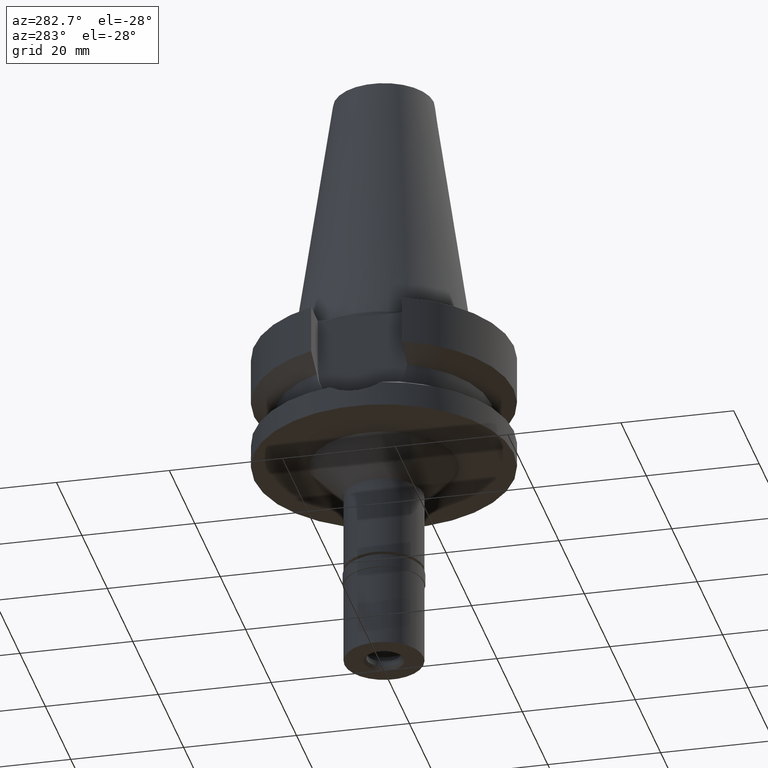
[diagram: clean part render]
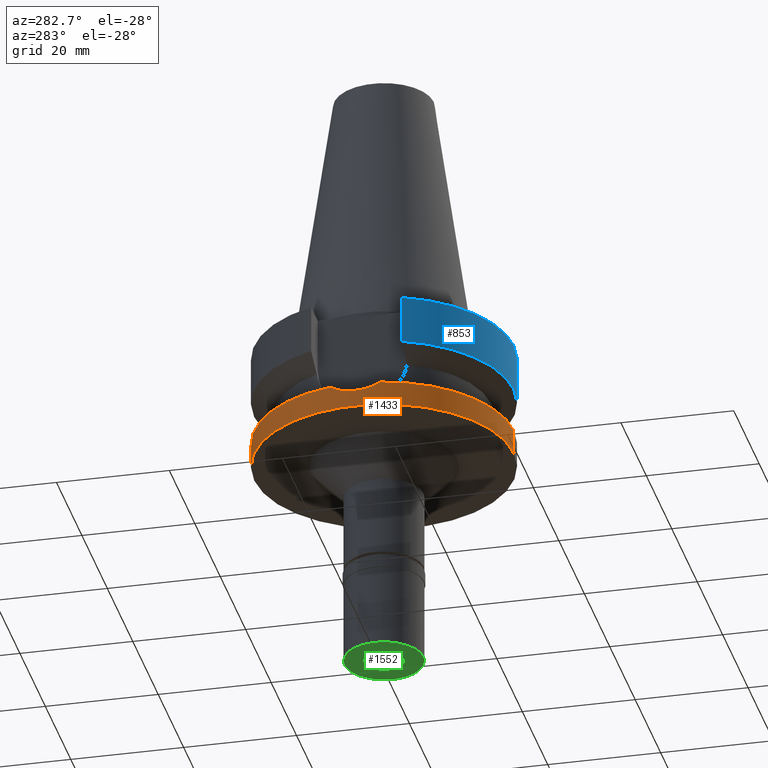
[diagram: same view with three faces highlighted in distinct colors, each labeled with its STEP entity id]
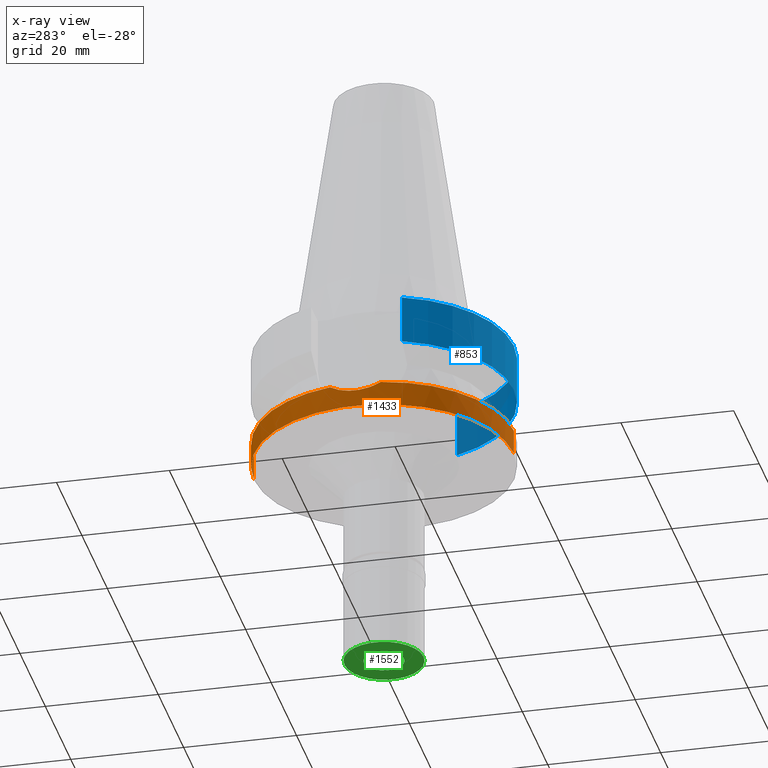
[diagram: x-ray of the same camera — body ghosted, the three highlighted faces saturated]
A machine part, auxiliary view with three faces highlighted in distinct colors.
The next image is the same camera in x-ray (body ghosted, the three faces saturated) — at least one of them is partly hidden behind the body in this view.
Their STEP definitions:

[orange] entity #1433 — the highlighted cylindrical surface (partial cylindrical patch) has radius 23.0018 mm, axis along (0, 0, -1).
#3 = CIRCLE ( 'NONE', #2534, 23.00179173279000011 ) ;
#10 = CARTESIAN_POINT ( 'NONE',  ( -22.88402643636988643, -2.325754021695328966, -18.65674074075245770 ) ) ;
#35 = CARTESIAN_POINT ( 'NONE',  ( -22.96114436732786146, -1.378457862027962388, -18.88353429848299214 ) ) ;
#108 = EDGE_CURVE ( 'NONE', #152, #382, #311, .T. ) ;
#141 = ORIENTED_EDGE ( 'NONE', *, *, #2181, .F. ) ;
#152 = VERTEX_POINT ( 'NONE', #2197 ) ;
#185 = CARTESIAN_POINT ( 'NONE',  ( 0.0000000000000000000, 23.00179173279000011, -17.63279163029000074 ) ) ;
#213 = CARTESIAN_POINT ( 'NONE',  ( -22.89849815869771987, -2.179392640264593339, -18.69965624314833263 ) ) ;
#235 = CARTESIAN_POINT ( 'NONE',  ( -22.95396285075072029, 1.531416406263037100, -18.86284724088618248 ) ) ;
#254 = AXIS2_PLACEMENT_3D ( 'NONE', #1543, #2888, #2466 ) ;
#309 = ORIENTED_EDGE ( 'NONE', *, *, #108, .T. ) ;
#311 = CIRCLE ( 'NONE', #1301, 23.00179173279000366 ) ;
#355 = ORIENTED_EDGE ( 'NONE', *, *, #2873, .T. ) ;
#367 = CARTESIAN_POINT ( 'NONE',  ( 0.0000000000000000000, 1.881302412850000052E-14, -22.00000000000000000 ) ) ;
#378 = CARTESIAN_POINT ( 'NONE',  ( 0.0000000000000000000, 1.022848384030000006E-14, -17.63279163029000074 ) ) ;
#382 = VERTEX_POINT ( 'NONE', #2573 ) ;
#394 = DIRECTION ( 'NONE',  ( -0.9807796963072338281, 0.1951183930630069618, 0.0000000000000000000 ) ) ;
#425 = CARTESIAN_POINT ( 'NONE',  ( -22.94868690431086122, -1.573057305262965055, -18.84731829897561539 ) ) ;
#443 = CARTESIAN_POINT ( 'NONE',  ( -22.89141392999098557, -2.251876405495350397, -18.67866006598378092 ) ) ;
#460 = CARTESIAN_POINT ( 'NONE',  ( -23.00137289315239641, -0.4076242066965087285, -18.99876958677882755 ) ) ;
#486 = CARTESIAN_POINT ( 'NONE',  ( -22.70532447095174788, -3.756029773028041419, -18.12442173740278406 ) ) ;
#537 = VECTOR ( 'NONE', #1268, 1000.000000000000000 ) ;
#586 = CYLINDRICAL_SURFACE ( 'NONE', #633, 23.00179173279000011 ) ;
#633 = AXIS2_PLACEMENT_3D ( 'NONE', #1904, #1922, #1313 ) ;
#660 = CARTESIAN_POINT ( 'NONE',  ( -22.87656963739355831, 2.398009204690335405, -18.63456619442488460 ) ) ;
#668 = CARTESIAN_POINT ( 'NONE',  ( -22.86974498650314658, 2.462640222853216709, -18.61429980678051521 ) ) ;
#673 = CARTESIAN_POINT ( 'NONE',  ( 0.0000000000000000000, 23.00179173279000011, -22.00000000000000000 ) ) ;
#680 = CARTESIAN_POINT ( 'NONE',  ( -22.85301127379106845, 2.614619028431492964, -18.56452842529814262 ) ) ;
#898 = CARTESIAN_POINT ( 'NONE',  ( -22.80396809543739778, 3.013367451515033490, -18.41713961940294197 ) ) ;
#958 = B_SPLINE_CURVE_WITH_KNOTS ( 'NONE', 3,
 ( #2062, #2256, #1108, #2724, #898, #1324, #680, #668, #660, #2246, #1365, #2468, #235, #1602, #2494, #460, #2457, #35, #425, #1341, #2711, #213, #443, #2025, #10, #1818, #486, #2012 ),
 .UNSPECIFIED., .F., .F.,
 ( 4, 2, 2, 1, 1, 2, 2, 2, 2, 2, 2, 1, 1, 2, 2, 4 ),
 ( 0.0000000000000000000, 0.1250000000000028311, 0.1875000000000044686, 0.2187500000000052458, 0.2343750000000055234, 0.2421875000000056899, 0.2500000000000058287, 0.3750000000000051070, 0.5000000000000043299, 0.6250000000000034417, 0.6875000000000031086, 0.7187500000000031086, 0.7343750000000028866, 0.7421875000000027756, 0.7500000000000027756, 1.000000000000000000 ),
 .UNSPECIFIED. ) ;
#976 = EDGE_CURVE ( 'NONE', #988, #1945, #3, .T. ) ;
#988 = VERTEX_POINT ( 'NONE', #673 ) ;
#1038 = FACE_OUTER_BOUND ( 'NONE', #1283, .T. ) ;
#1042 = VERTEX_POINT ( 'NONE', #2706 ) ;
#1108 = CARTESIAN_POINT ( 'NONE',  ( -22.69786555316973420, 3.742247097983885773, -18.08863856139490522 ) ) ;
#1246 = DIRECTION ( 'NONE',  ( 0.0000000000000000000, 0.0000000000000000000, -1.000000000000000000 ) ) ;
#1268 = DIRECTION ( 'NONE',  ( 0.0000000000000000000, -2.440492903962000069E-14, -1.000000000000000000 ) ) ;
#1283 = EDGE_LOOP ( 'NONE', ( #309, #2642, #2243, #2855, #355, #141 ) ) ;
#1287 = CARTESIAN_POINT ( 'NONE',  ( 0.0000000000000000000, -23.00179173279000011, -17.63279163029000074 ) ) ;
#1301 = AXIS2_PLACEMENT_3D ( 'NONE', #378, #1246, #394 ) ;
#1313 = DIRECTION ( 'NONE',  ( 0.0000000000000000000, -1.000000000000000000, 0.0000000000000000000 ) ) ;
#1324 = CARTESIAN_POINT ( 'NONE',  ( -22.83728033037878902, 2.746791842467859457, -18.51747308865574126 ) ) ;
#1341 = CARTESIAN_POINT ( 'NONE',  ( -22.92632424490862775, -1.864438774914492170, -18.78174817360973492 ) ) ;
#1365 = CARTESIAN_POINT ( 'NONE',  ( -22.88310326431275854, 2.334973900067765396, -18.65396240018893081 ) ) ;
#1433 = ADVANCED_FACE ( 'NONE', ( #1038 ), #586, .T. ) ;
#1543 = CARTESIAN_POINT ( 'NONE',  ( 0.0000000000000000000, 1.022848384030000006E-14, -17.63279163029000074 ) ) ;
#1602 = CARTESIAN_POINT ( 'NONE',  ( -22.99270542384788740, 0.7497304644855727895, -18.97473002023083666 ) ) ;
#1720 = DIRECTION ( 'NONE',  ( 0.0000000000000000000, 2.359143140496999862E-14, -1.000000000000000000 ) ) ;
#1818 = CARTESIAN_POINT ( 'NONE',  ( -22.81271620766460018, -3.020658728047468156, -18.44495605090872203 ) ) ;
#1880 = CARTESIAN_POINT ( 'NONE',  ( 0.0000000000000000000, -23.00179173279000011, -17.63279163029000074 ) ) ;
#1904 = CARTESIAN_POINT ( 'NONE',  ( 0.0000000000000000000, 1.881302412850000052E-14, 53.62000000000000455 ) ) ;
#1922 = DIRECTION ( 'NONE',  ( 0.0000000000000000000, 0.0000000000000000000, -1.000000000000000000 ) ) ;
#1945 = VERTEX_POINT ( 'NONE', #2302 ) ;
#1957 = CIRCLE ( 'NONE', #254, 23.00179173279000011 ) ;
#1958 = DIRECTION ( 'NONE',  ( 0.0000000000000000000, 0.0000000000000000000, 1.000000000000000000 ) ) ;
#2012 = CARTESIAN_POINT ( 'NONE',  ( -22.55969031021000148, -4.488072640469000341, -17.63279163029000074 ) ) ;
#2025 = CARTESIAN_POINT ( 'NONE',  ( -22.88661451783490008, -2.300171273106836445, -18.66442453301172577 ) ) ;
#2045 = VECTOR ( 'NONE', #1720, 1000.000000000000000 ) ;
#2062 = CARTESIAN_POINT ( 'NONE',  ( -22.55969031021000148, 4.488072640469000341, -17.63279163029000074 ) ) ;
#2070 = EDGE_CURVE ( 'NONE', #382, #988, #2644, .T. ) ;
#2181 = EDGE_CURVE ( 'NONE', #152, #1042, #958, .T. ) ;
#2197 = CARTESIAN_POINT ( 'NONE',  ( -22.55969031021000148, 4.488072640469000341, -17.63279163029000074 ) ) ;
#2243 = ORIENTED_EDGE ( 'NONE', *, *, #976, .T. ) ;
#2246 = CARTESIAN_POINT ( 'NONE',  ( -22.88104230681562612, 2.355036454355307285, -18.64784444120137863 ) ) ;
#2256 = CARTESIAN_POINT ( 'NONE',  ( -22.63371219333480511, 4.115995160150487386, -17.88267384298432816 ) ) ;
#2302 = CARTESIAN_POINT ( 'NONE',  ( 0.0000000000000000000, -23.00179173279000011, -22.00000000000000000 ) ) ;
#2457 = CARTESIAN_POINT ( 'NONE',  ( -22.99116382662537106, -0.7953677957809910382, -18.97024564709867889 ) ) ;
#2466 = DIRECTION ( 'NONE',  ( 0.0000000000000000000, -1.000000000000000000, 0.0000000000000000000 ) ) ;
#2468 = CARTESIAN_POINT ( 'NONE',  ( -22.92470154566406038, 1.923074849751592375, -18.77739204128479500 ) ) ;
#2484 = VERTEX_POINT ( 'NONE', #1880 ) ;
#2494 = CARTESIAN_POINT ( 'NONE',  ( -23.00218321353049333, 0.3574847674060553926, -19.00115233963521533 ) ) ;
#2534 = AXIS2_PLACEMENT_3D ( 'NONE', #367, #1958, #2603 ) ;
#2573 = CARTESIAN_POINT ( 'NONE',  ( 0.0000000000000000000, 23.00179173279000011, -17.63279163029000074 ) ) ;
#2603 = DIRECTION ( 'NONE',  ( 0.0000000000000000000, 1.000000000000000000, 0.0000000000000000000 ) ) ;
#2642 = ORIENTED_EDGE ( 'NONE', *, *, #2070, .T. ) ;
#2644 = LINE ( 'NONE', #185, #537 ) ;
#2655 = EDGE_CURVE ( 'NONE', #2484, #1945, #2872, .T. ) ;
#2706 = CARTESIAN_POINT ( 'NONE',  ( -22.55969031021000148, -4.488072640469000341, -17.63279163029000074 ) ) ;
#2711 = CARTESIAN_POINT ( 'NONE',  ( -22.91422379898832418, -2.009999252541759152, -18.74615257596152063 ) ) ;
#2724 = CARTESIAN_POINT ( 'NONE',  ( -22.77929280798732847, 3.194069245020894954, -18.34195103617187783 ) ) ;
#2855 = ORIENTED_EDGE ( 'NONE', *, *, #2655, .F. ) ;
#2872 = LINE ( 'NONE', #1287, #2045 ) ;
#2873 = EDGE_CURVE ( 'NONE', #2484, #1042, #1957, .T. ) ;
#2888 = DIRECTION ( 'NONE',  ( 0.0000000000000000000, 0.0000000000000000000, -1.000000000000000000 ) ) ;

[blue] entity #853 — the highlighted cylindrical surface (partial cylindrical patch) has radius 23.0018 mm, axis along (0, 0, -1).
#208 = CIRCLE ( 'NONE', #2082, 23.00179173279000011 ) ;
#227 = ORIENTED_EDGE ( 'NONE', *, *, #2326, .T. ) ;
#514 = DIRECTION ( 'NONE',  ( 0.0000000000000000000, 0.0000000000000000000, 1.000000000000000000 ) ) ;
#527 = CARTESIAN_POINT ( 'NONE',  ( 21.54715579650000024, -8.050000000000000711, -1.000000000000000000 ) ) ;
#555 = FACE_OUTER_BOUND ( 'NONE', #627, .T. ) ;
#557 = DIRECTION ( 'NONE',  ( 0.0000000000000000000, -1.000000000000000000, 0.0000000000000000000 ) ) ;
#581 = CARTESIAN_POINT ( 'NONE',  ( -21.54715579650000024, -8.050000000000000711, -1.000000000000000000 ) ) ;
#627 = EDGE_LOOP ( 'NONE', ( #646, #227, #1264, #1412 ) ) ;
#646 = ORIENTED_EDGE ( 'NONE', *, *, #2735, .F. ) ;
#778 = CARTESIAN_POINT ( 'NONE',  ( 0.0000000000000000000, 1.093341284896999988E-14, -9.567208369710998639 ) ) ;
#780 = CARTESIAN_POINT ( 'NONE',  ( 21.54715579650000024, -8.050000000000000711, -9.567208369710998639 ) ) ;
#853 = ADVANCED_FACE ( 'NONE', ( #555 ), #1444, .T. ) ;
#989 = EDGE_CURVE ( 'NONE', #2257, #1604, #2214, .T. ) ;
#1204 = DIRECTION ( 'NONE',  ( 0.0000000000000000000, 0.0000000000000000000, -1.000000000000000000 ) ) ;
#1264 = ORIENTED_EDGE ( 'NONE', *, *, #989, .F. ) ;
#1361 = CARTESIAN_POINT ( 'NONE',  ( 21.54715579650000024, -8.050000000000000711, -1.000000000000000000 ) ) ;
#1412 = ORIENTED_EDGE ( 'NONE', *, *, #1729, .T. ) ;
#1444 = CYLINDRICAL_SURFACE ( 'NONE', #2446, 23.00179173279000011 ) ;
#1604 = VERTEX_POINT ( 'NONE', #780 ) ;
#1717 = CIRCLE ( 'NONE', #2898, 23.00179173279000011 ) ;
#1729 = EDGE_CURVE ( 'NONE', #2257, #2772, #208, .T. ) ;
#1824 = CARTESIAN_POINT ( 'NONE',  ( -21.54715595432999820, -8.049999577544001639, -9.567211145671999262 ) ) ;
#1829 = DIRECTION ( 'NONE',  ( 0.0000000000000000000, 0.0000000000000000000, -1.000000000000000000 ) ) ;
#1871 = VERTEX_POINT ( 'NONE', #1824 ) ;
#1920 = LINE ( 'NONE', #2124, #2090 ) ;
#2060 = CARTESIAN_POINT ( 'NONE',  ( 0.0000000000000000000, 1.881302412850000052E-14, 53.62000000000000455 ) ) ;
#2073 = CARTESIAN_POINT ( 'NONE',  ( 0.0000000000000000000, 1.881302412850000052E-14, -0.9999999999999000799 ) ) ;
#2082 = AXIS2_PLACEMENT_3D ( 'NONE', #2073, #1204, #2109 ) ;
#2090 = VECTOR ( 'NONE', #2834, 1000.000000000000114 ) ;
#2109 = DIRECTION ( 'NONE',  ( 0.0000000000000000000, -1.000000000000000000, 0.0000000000000000000 ) ) ;
#2124 = CARTESIAN_POINT ( 'NONE',  ( -21.54715595432999820, -8.049999577544001639, -9.567211145671999262 ) ) ;
#2214 = LINE ( 'NONE', #1361, #2294 ) ;
#2257 = VERTEX_POINT ( 'NONE', #527 ) ;
#2294 = VECTOR ( 'NONE', #2692, 1000.000000000000114 ) ;
#2326 = EDGE_CURVE ( 'NONE', #1871, #1604, #1717, .T. ) ;
#2446 = AXIS2_PLACEMENT_3D ( 'NONE', #2060, #1829, #2732 ) ;
#2692 = DIRECTION ( 'NONE',  ( -9.129686183793688433E-08, -2.443710705671914470E-07, -0.9999999999999659162 ) ) ;
#2732 = DIRECTION ( 'NONE',  ( 0.0000000000000000000, -1.000000000000000000, 0.0000000000000000000 ) ) ;
#2735 = EDGE_CURVE ( 'NONE', #1871, #2772, #1920, .T. ) ;
#2772 = VERTEX_POINT ( 'NONE', #581 ) ;
#2834 = DIRECTION ( 'NONE',  ( 1.842247677261992558E-08, -4.931077876186982548E-08, 0.9999999999999985567 ) ) ;
#2898 = AXIS2_PLACEMENT_3D ( 'NONE', #778, #514, #557 ) ;

[green] entity #1552 — the highlighted planar face has unit normal (0, 0, 1).
#28 = EDGE_CURVE ( 'NONE', #1989, #2210, #604, .T. ) ;
#59 = CIRCLE ( 'NONE', #769, 7.000000000000000000 ) ;
#128 = DIRECTION ( 'NONE',  ( 0.0000000000000000000, -1.000000000000000000, 0.0000000000000000000 ) ) ;
#133 = CARTESIAN_POINT ( 'NONE',  ( 0.0000000000000000000, 0.0000000000000000000, -17.00000000000000000 ) ) ;
#216 = CIRCLE ( 'NONE', #1851, 3.550000000000000266 ) ;
#253 = DIRECTION ( 'NONE',  ( 0.0000000000000000000, 0.0000000000000000000, 1.000000000000000000 ) ) ;
#328 = EDGE_CURVE ( 'NONE', #2613, #1748, #2054, .T. ) ;
#552 = CARTESIAN_POINT ( 'NONE',  ( 0.0000000000000000000, 0.0000000000000000000, -17.00000000000000000 ) ) ;
#604 = CIRCLE ( 'NONE', #2863, 3.550000000000000266 ) ;
#661 = DIRECTION ( 'NONE',  ( 0.0000000000000000000, 0.0000000000000000000, 1.000000000000000000 ) ) ;
#705 = CARTESIAN_POINT ( 'NONE',  ( 0.0000000000000000000, 3.550000000000000266, -17.00000000000000000 ) ) ;
#720 = EDGE_LOOP ( 'NONE', ( #1167, #2306 ) ) ;
#769 = AXIS2_PLACEMENT_3D ( 'NONE', #1026, #661, #128 ) ;
#842 = ORIENTED_EDGE ( 'NONE', *, *, #2637, .F. ) ;
#899 = DIRECTION ( 'NONE',  ( 0.0000000000000000000, 0.0000000000000000000, 1.000000000000000000 ) ) ;
#906 = FACE_OUTER_BOUND ( 'NONE', #720, .T. ) ;
#977 = CARTESIAN_POINT ( 'NONE',  ( 0.0000000000000000000, 0.0000000000000000000, -17.00000000000000000 ) ) ;
#984 = CARTESIAN_POINT ( 'NONE',  ( 0.0000000000000000000, 7.000000000000000000, -17.00000000000000000 ) ) ;
#1026 = CARTESIAN_POINT ( 'NONE',  ( 0.0000000000000000000, 0.0000000000000000000, -17.00000000000000000 ) ) ;
#1167 = ORIENTED_EDGE ( 'NONE', *, *, #328, .F. ) ;
#1230 = AXIS2_PLACEMENT_3D ( 'NONE', #2063, #899, #2737 ) ;
#1295 = DIRECTION ( 'NONE',  ( 0.0000000000000000000, -1.000000000000000000, 0.0000000000000000000 ) ) ;
#1392 = EDGE_CURVE ( 'NONE', #1748, #2613, #59, .T. ) ;
#1399 = FACE_BOUND ( 'NONE', #2300, .T. ) ;
#1403 = ORIENTED_EDGE ( 'NONE', *, *, #28, .F. ) ;
#1471 = CARTESIAN_POINT ( 'NONE',  ( 0.0000000000000000000, -3.550000000000000266, -17.00000000000000000 ) ) ;
#1487 = CARTESIAN_POINT ( 'NONE',  ( 0.0000000000000000000, -7.000000000000000000, -17.00000000000000000 ) ) ;
#1490 = AXIS2_PLACEMENT_3D ( 'NONE', #977, #253, #1872 ) ;
#1552 = ADVANCED_FACE ( 'NONE', ( #906, #1399 ), #1619, .F. ) ;
#1619 = PLANE ( 'NONE',  #1230 ) ;
#1748 = VERTEX_POINT ( 'NONE', #1487 ) ;
#1851 = AXIS2_PLACEMENT_3D ( 'NONE', #552, #2405, #2389 ) ;
#1872 = DIRECTION ( 'NONE',  ( 0.0000000000000000000, 1.000000000000000000, 0.0000000000000000000 ) ) ;
#1989 = VERTEX_POINT ( 'NONE', #1471 ) ;
#2054 = CIRCLE ( 'NONE', #1490, 7.000000000000000000 ) ;
#2063 = CARTESIAN_POINT ( 'NONE',  ( 0.0000000000000000000, 0.0000000000000000000, -17.00000000000000000 ) ) ;
#2210 = VERTEX_POINT ( 'NONE', #705 ) ;
#2300 = EDGE_LOOP ( 'NONE', ( #842, #1403 ) ) ;
#2306 = ORIENTED_EDGE ( 'NONE', *, *, #1392, .F. ) ;
#2389 = DIRECTION ( 'NONE',  ( 0.0000000000000000000, 1.000000000000000000, 0.0000000000000000000 ) ) ;
#2405 = DIRECTION ( 'NONE',  ( 0.0000000000000000000, 0.0000000000000000000, -1.000000000000000000 ) ) ;
#2613 = VERTEX_POINT ( 'NONE', #984 ) ;
#2637 = EDGE_CURVE ( 'NONE', #2210, #1989, #216, .T. ) ;
#2737 = DIRECTION ( 'NONE',  ( 1.000000000000000000, 0.0000000000000000000, 0.0000000000000000000 ) ) ;
#2863 = AXIS2_PLACEMENT_3D ( 'NONE', #133, #2889, #1295 ) ;
#2889 = DIRECTION ( 'NONE',  ( 0.0000000000000000000, 0.0000000000000000000, -1.000000000000000000 ) ) ;